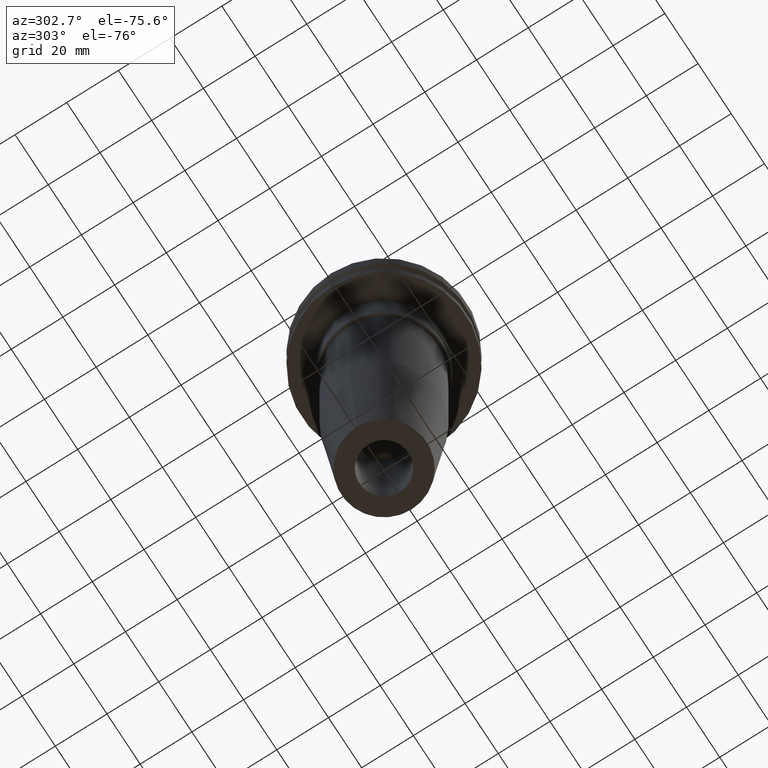
[diagram: clean part render]
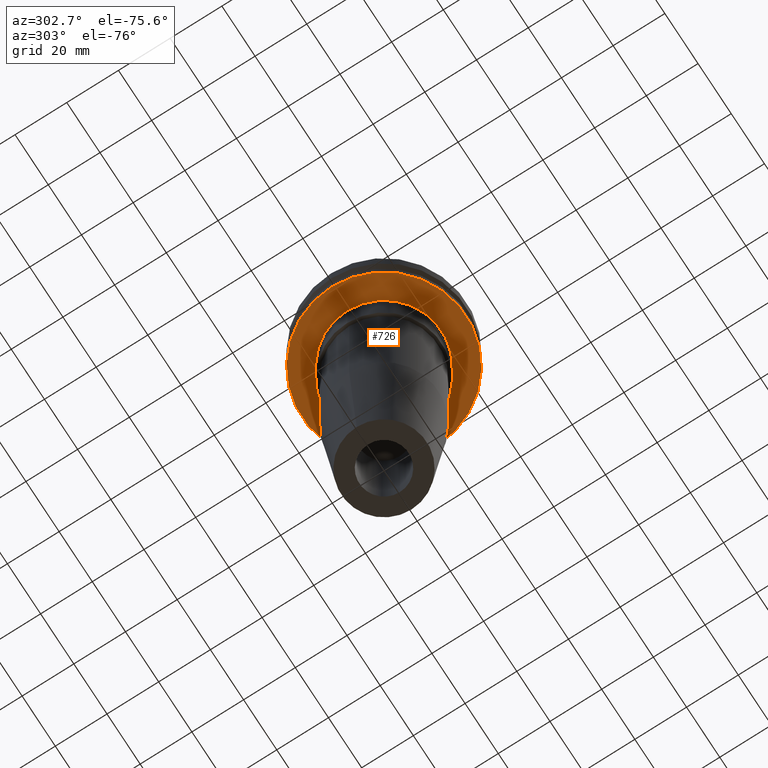
[diagram: same view with one face highlighted and labeled with its STEP entity id]
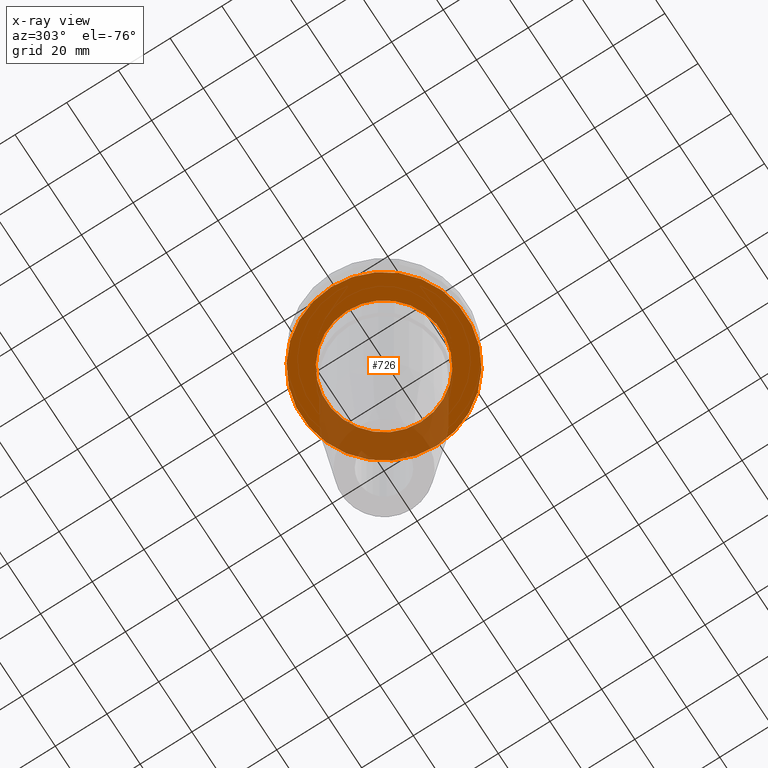
[diagram: x-ray of the same camera — body ghosted, the highlighted face saturated]
A machine part, auxiliary view. The second image highlights one B-rep face of the part: STEP entity #726.
The next image is the same camera in x-ray: the body ghosted, the highlighted face saturated — about 29% of this face is hidden behind the body in this view.
In plain terms, the highlighted planar face has unit normal (0, -0, 1).
Its self-contained STEP definition (entity closure, byte-faithful):
#21 = CIRCLE ( 'NONE', #433, 22.22500000000000142 ) ;
#35 = CARTESIAN_POINT ( 'NONE',  ( 0.000000000000000000, 0.000000000000000000, -19.04999999999999716 ) ) ;
#47 = EDGE_LOOP ( 'NONE', ( #131, #453 ) ) ;
#59 = CARTESIAN_POINT ( 'NONE',  ( 0.000000000000000000, 0.000000000000000000, -19.04999999999999716 ) ) ;
#75 = EDGE_CURVE ( 'NONE', #368, #723, #21, .T. ) ;
#101 = AXIS2_PLACEMENT_3D ( 'NONE', #59, #783, #839 ) ;
#124 = AXIS2_PLACEMENT_3D ( 'NONE', #388, #301, #697 ) ;
#131 = ORIENTED_EDGE ( 'NONE', *, *, #816, .F. ) ;
#153 = DIRECTION ( 'NONE',  ( 1.000000000000000000, 0.000000000000000000, 0.000000000000000000 ) ) ;
#157 = CARTESIAN_POINT ( 'NONE',  ( -31.74999999999999289, 3.888253587292845687E-15, -19.04999999999999716 ) ) ;
#232 = CARTESIAN_POINT ( 'NONE',  ( -22.22500000000000142, 2.721777511104992849E-15, -19.04999999999999716 ) ) ;
#301 = DIRECTION ( 'NONE',  ( 0.000000000000000000, -0.000000000000000000, 1.000000000000000000 ) ) ;
#304 = DIRECTION ( 'NONE',  ( -0.000000000000000000, -0.000000000000000000, 1.000000000000000000 ) ) ;
#357 = AXIS2_PLACEMENT_3D ( 'NONE', #770, #434, #832 ) ;
#368 = VERTEX_POINT ( 'NONE', #442 ) ;
#388 = CARTESIAN_POINT ( 'NONE',  ( 0.000000000000000000, 31.74999999999999289, -19.04999999999999716 ) ) ;
#422 = DIRECTION ( 'NONE',  ( 1.000000000000000000, 0.000000000000000000, 0.000000000000000000 ) ) ;
#433 = AXIS2_PLACEMENT_3D ( 'NONE', #35, #304, #153 ) ;
#434 = DIRECTION ( 'NONE',  ( -0.000000000000000000, -0.000000000000000000, 1.000000000000000000 ) ) ;
#441 = ORIENTED_EDGE ( 'NONE', *, *, #562, .T. ) ;
#442 = CARTESIAN_POINT ( 'NONE',  ( 22.22500000000000142, 0.000000000000000000, -19.04999999999999716 ) ) ;
#452 = PLANE ( 'NONE',  #124 ) ;
#453 = ORIENTED_EDGE ( 'NONE', *, *, #690, .F. ) ;
#481 = CARTESIAN_POINT ( 'NONE',  ( 31.74999999999999289, 0.000000000000000000, -19.04999999999999716 ) ) ;
#495 = CARTESIAN_POINT ( 'NONE',  ( 0.000000000000000000, 0.000000000000000000, -19.04999999999999716 ) ) ;
#518 = FACE_OUTER_BOUND ( 'NONE', #47, .T. ) ;
#522 = CIRCLE ( 'NONE', #620, 22.22500000000000142 ) ;
#549 = VERTEX_POINT ( 'NONE', #481 ) ;
#562 = EDGE_CURVE ( 'NONE', #723, #368, #522, .T. ) ;
#589 = CIRCLE ( 'NONE', #101, 31.74999999999999289 ) ;
#620 = AXIS2_PLACEMENT_3D ( 'NONE', #495, #793, #422 ) ;
#634 = FACE_BOUND ( 'NONE', #743, .T. ) ;
#690 = EDGE_CURVE ( 'NONE', #807, #549, #851, .T. ) ;
#697 = DIRECTION ( 'NONE',  ( 1.000000000000000000, 0.000000000000000000, 0.000000000000000000 ) ) ;
#713 = ORIENTED_EDGE ( 'NONE', *, *, #75, .T. ) ;
#723 = VERTEX_POINT ( 'NONE', #232 ) ;
#726 = ADVANCED_FACE ( 'NONE', ( #518, #634 ), #452, .F. ) ;
#743 = EDGE_LOOP ( 'NONE', ( #713, #441 ) ) ;
#770 = CARTESIAN_POINT ( 'NONE',  ( 0.000000000000000000, 0.000000000000000000, -19.04999999999999716 ) ) ;
#783 = DIRECTION ( 'NONE',  ( -0.000000000000000000, -0.000000000000000000, 1.000000000000000000 ) ) ;
#793 = DIRECTION ( 'NONE',  ( -0.000000000000000000, -0.000000000000000000, 1.000000000000000000 ) ) ;
#807 = VERTEX_POINT ( 'NONE', #157 ) ;
#816 = EDGE_CURVE ( 'NONE', #549, #807, #589, .T. ) ;
#832 = DIRECTION ( 'NONE',  ( 1.000000000000000000, 0.000000000000000000, 0.000000000000000000 ) ) ;
#839 = DIRECTION ( 'NONE',  ( 1.000000000000000000, 0.000000000000000000, 0.000000000000000000 ) ) ;
#851 = CIRCLE ( 'NONE', #357, 31.74999999999999289 ) ;